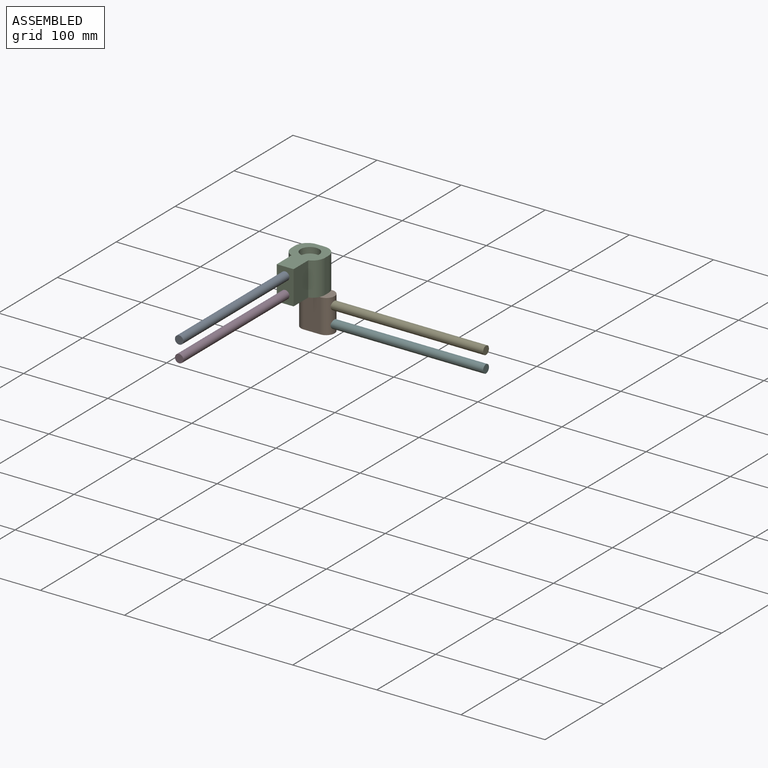
[diagram: assembled view]
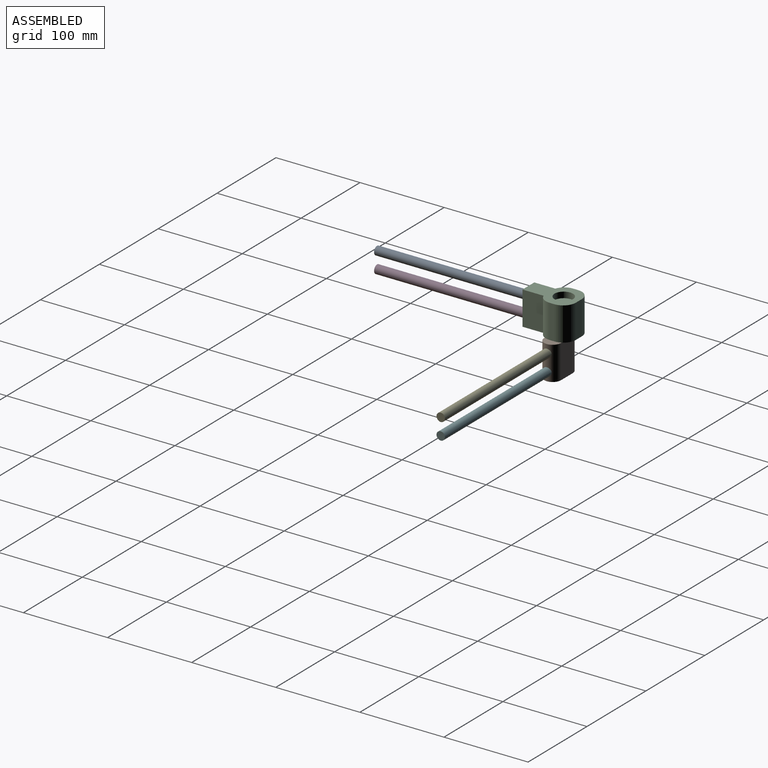
[diagram: assembled view, second angle]
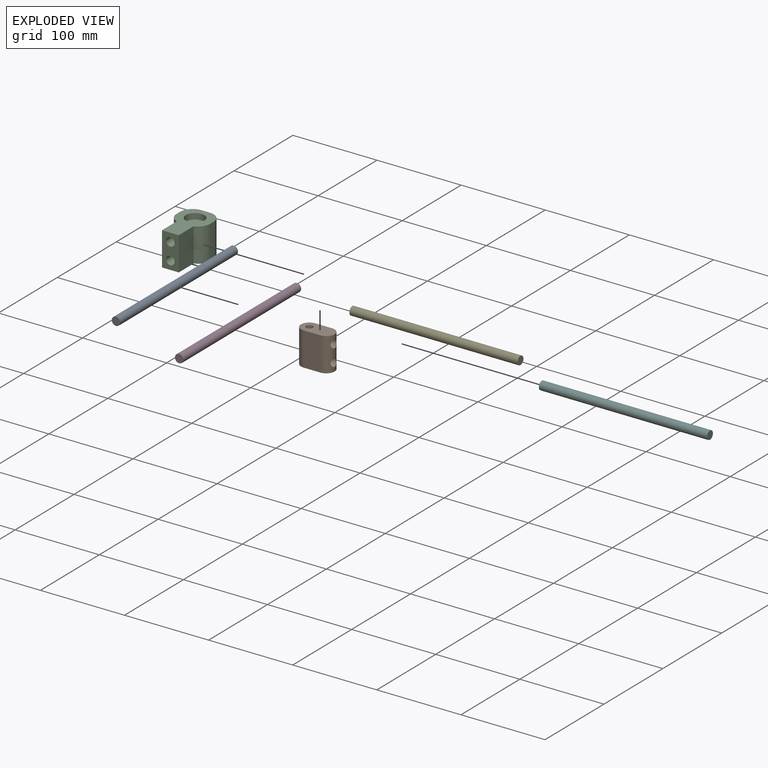
[diagram: exploded view]
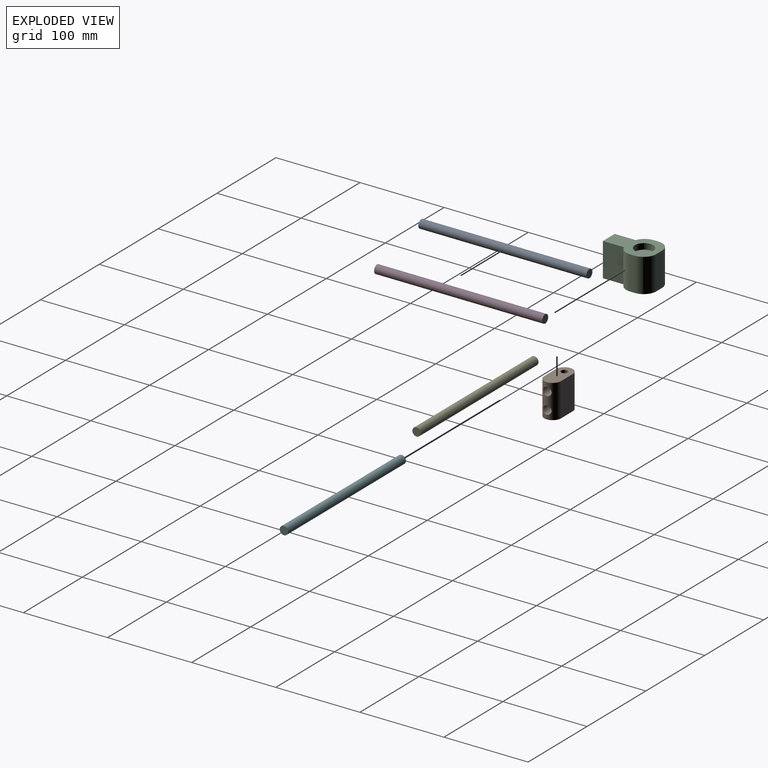
[diagram: exploded view, second angle]
ASSEMBLY  parts=6 mates=4
PART A: 3 faces, bbox 10x10x200 mm
  f0: cylinder r=5mm len=200mm, axis (0,0,-1), area 6283.2mm2, adj f1,f2
  f1: plane 10x10mm, normal (0,0,1), area 78.5mm2, adj f0
  f2: plane 10x10mm, normal (0,0,-1), area 78.5mm2, adj f0
PART B: 18 faces, bbox 40x20x40 mm
  f0: plane 40x20mm, normal (0,0,-1), area 547.9mm2, adj f2,f3,f9,f10,f11,f12,f13,f14
  f1: cylinder r=4mm len=33mm, axis (0,0,1), area 829.4mm2, adj f4,f17
  f2: plane 40x20mm, normal (0,1,0), area 800mm2, adj f0,f4,f9,f10
  f3: plane 40x20mm, normal (0,-1,0), area 800mm2, adj f0,f4,f9,f10
  f4: plane 40x20mm, normal (0,0,1), area 663.9mm2, adj f1,f2,f3,f9,f10
  f5: cylinder r=5mm len=20mm, axis (1,0,0), area 607.7mm2, adj f6,f10
  f6: plane 10x10mm, normal (1,0,0), area 78.5mm2, adj f5
  f7: cylinder r=5mm len=20mm, axis (1,0,0), area 607.7mm2, adj f8,f10
  f8: plane 10x10mm, normal (1,0,0), area 78.5mm2, adj f7
  f9: cylinder r=10mm len=40mm, axis (0,0,-1), area 1256.6mm2, adj f0,f2,f3,f4
  f10: cylinder r=10mm len=40mm, axis (0,0,-1), area 1094.1mm2, adj f0,f2,f3,f4,f5,f7
  f11: plane 7x6.89mm, normal (-0.86,0.51,0), area 56mm2, adj f0,f12,f16,f17
  f12: plane 8x7mm, normal (0.01,1,0), area 56mm2, adj f0,f11,f13,f17
  f13: plane 7x6.96mm, normal (0.87,0.49,0), area 56mm2, adj f0,f12,f14,f17
  f14: plane 7x6.89mm, normal (0.86,-0.51,0), area 56mm2, adj f0,f13,f15,f17
  f15: plane 8x7mm, normal (-0.01,-1,0), area 56mm2, adj f0,f14,f16,f17
  f16: plane 7x6.96mm, normal (-0.87,-0.49,0), area 56mm2, adj f0,f11,f15,f17
  f17: plane 16x13.92mm, normal (0,0,-1), area 116mm2, adj f1,f11,f12,f13,f14,f15,f16
PART C: 21 faces, bbox 40x60x40 mm
  f0: plane 40x20mm, normal (0,-1,0), area 642.9mm2, adj f1,f2,f11,f13,f15,f16
  f1: plane 60x40mm, normal (0,0,1), area 1346.7mm2, adj f0,f3,f4,f5,f6,f15,f16,f17
  f2: plane 60x40mm, normal (0,0,-1), area 1346.7mm2, adj f0,f3,f4,f5,f8,f15,f16,f17
  f3: plane 40x10mm, normal (0,1,0), area 400mm2, adj f1,f2,f19,f20
  f4: plane 40x5.86mm, normal (-1,0,0), area 234.3mm2, adj f1,f2,f18,f19
  f5: plane 40x5.86mm, normal (1,0,0), area 234.3mm2, adj f1,f2,f17,f20
  f6: cylinder r=11mm len=22mm, axis (0,0,1), area 483.8mm2, adj f1,f7
  f7: plane 22x22mm, normal (0,0,1), area 329.9mm2, adj f6,f10
  f8: cylinder r=11mm len=22mm, axis (0,0,-1), area 483.8mm2, adj f2,f9
  f9: plane 22x22mm, normal (0,0,-1), area 329.9mm2, adj f8,f10
  f10: cylinder r=4mm len=26mm, axis (0,0,1), area 653.5mm2, adj f7,f9
  f11: cylinder r=5mm len=20mm, axis (0,-1,0), area 628.3mm2, adj f0,f12
  f12: plane 10x10mm, normal (0,-1,0), area 78.5mm2, adj f11
  f13: cylinder r=5mm len=20mm, axis (0,-1,0), area 628.3mm2, adj f0,f14
  f14: plane 10x10mm, normal (0,-1,0), area 78.5mm2, adj f13
  f15: plane 40x25mm, normal (1,0,0), area 1000mm2, adj f0,f1,f2,f17
  f16: plane 40x25mm, normal (-1,0,0), area 1000mm2, adj f0,f1,f2,f18
  f17: cylinder r=15mm len=40mm, axis (0,0,-1), area 738.6mm2, adj f1,f2,f5,f15
  f18: cylinder r=15mm len=40mm, axis (0,0,1), area 738.6mm2, adj f1,f2,f4,f16
  f19: cylinder r=15mm len=40mm, axis (0,0,1), area 942.5mm2, adj f1,f2,f3,f4
  f20: cylinder r=15mm len=40mm, axis (0,0,-1), area 942.5mm2, adj f1,f2,f3,f5
PART D: same geometry as A
PART E: same geometry as A
PART F: same geometry as A
PLACE A rot(axis=(0,-0.71,-0.71),180deg) t=(122.65,-153.86,-96.17)mm
PLACE B t=(111.86,77.61,-166.11)mm
PLACE C rot(axis=(-0.34,-0.13,0.93),0deg) t=(102.65,86.14,-126.17)mm
PLACE D rot(axis=(1,0,0),90deg) t=(122.65,46.14,-116.17)mm
PLACE E rot(axis=(0.71,0,0.71),180deg) t=(131.86,68.39,-136.11)mm
PLACE F rot(axis=(0.71,0,0.71),180deg) t=(131.86,68.39,-156.11)mm
MATE fastened E.f0 <-> B.f7  axis (-1,0,0) through (131.86,68.39,-136.11)mm
MATE fastened D.f0 <-> C.f11  axis (0,1,0) through (122.65,46.14,-116.17)mm
MATE fastened A.f0 <-> C.f13  axis (0,1,0) through (122.65,46.14,-96.17)mm
MATE fastened F.f0 <-> B.f5  axis (-1,0,0) through (131.86,68.39,-156.11)mm
